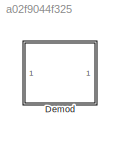
MODEL slx_a02f9044f325
KIND library
CONFIG AbsTol = auto
CONFIG FixedStep = auto
CONFIG MaxStep = auto
CONFIG MinStep = auto
CONFIG RelTol = 1e-3
CONFIG SampleTimeConstraint = Unconstrained
CONFIG Solver = ode45
CONFIG SolverMode = Auto
CONFIG SolverName = ode45
CONFIG StartTime = 0.0
CONFIG StopTime = 10.0
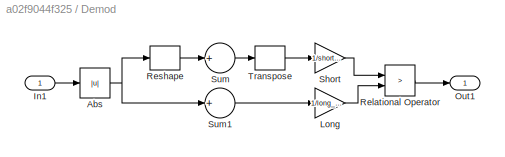
BLOCK [SubSystem] Demod 
  Ports = [1, 1]
  RequestExecContextInheritance = off
  Variant = off
BLOCK [Abs] Demod /Abs
  SaturateOnIntegerOverflow = off
BLOCK [Inport] Demod /In1
  IconDisplay = Port number
BLOCK [Gain] Demod /Long
  Gain = 1/long_mean_len
  OutDataTypeStr = Inherit: Inherit via internal rule
  ParamDataTypeStr = Inherit: Inherit via internal rule
  SaturateOnIntegerOverflow = off
BLOCK [Outport] Demod /Out1
  IconDisplay = Port number
BLOCK [RelationalOperator] Demod /Relational Operator
  InputSameDT = off
  Operator = >
  OutDataTypeStr = boolean
  Ports = [2, 1]
BLOCK [Reshape] Demod /Reshape
  OutputDimensionality = Customize
  OutputDimensions = [short_mean_len, 810]
  Ports = [1, 1]
BLOCK [Gain] Demod /Short
  Gain = 1/short_mean_len
  OutDataTypeStr = Inherit: Inherit via internal rule
  ParamDataTypeStr = Inherit: Inherit via internal rule
  SaturateOnIntegerOverflow = off
BLOCK [Sum] Demod /Sum
  CollapseMode = Specified dimension
  InputSameDT = off
  Inputs = +
  OutDataTypeStr = Inherit: Inherit via internal rule
  Ports = [1, 1]
  SaturateOnIntegerOverflow = off
BLOCK [Sum] Demod /Sum1
  CollapseMode = Specified dimension
  InputSameDT = off
  Inputs = +
  OutDataTypeStr = Inherit: Inherit via internal rule
  Ports = [1, 1]
  SaturateOnIntegerOverflow = off
BLOCK [Reshape] Demod /Transpose
  OutputDimensionality = Column vector (2-D)
  Ports = [1, 1]
NET Demod /Abs:1 -> Demod /Reshape:1, Demod /Sum1:1
LINE Demod /In1:1 -> Demod /Abs:1
LINE Demod /Long:1 -> Demod /Relational Operator:2
LINE Demod /Relational Operator:1 -> Demod /Out1:1
LINE Demod /Reshape:1 -> Demod /Sum:1
LINE Demod /Short:1 -> Demod /Relational Operator:1
LINE Demod /Sum1:1 -> Demod /Long:1
LINE Demod /Sum:1 -> Demod /Transpose:1
LINE Demod /Transpose:1 -> Demod /Short:1
note: NET lines group one-source signal fan-out (src -> all destinations, sorted); 1:1 wires keep LINE
